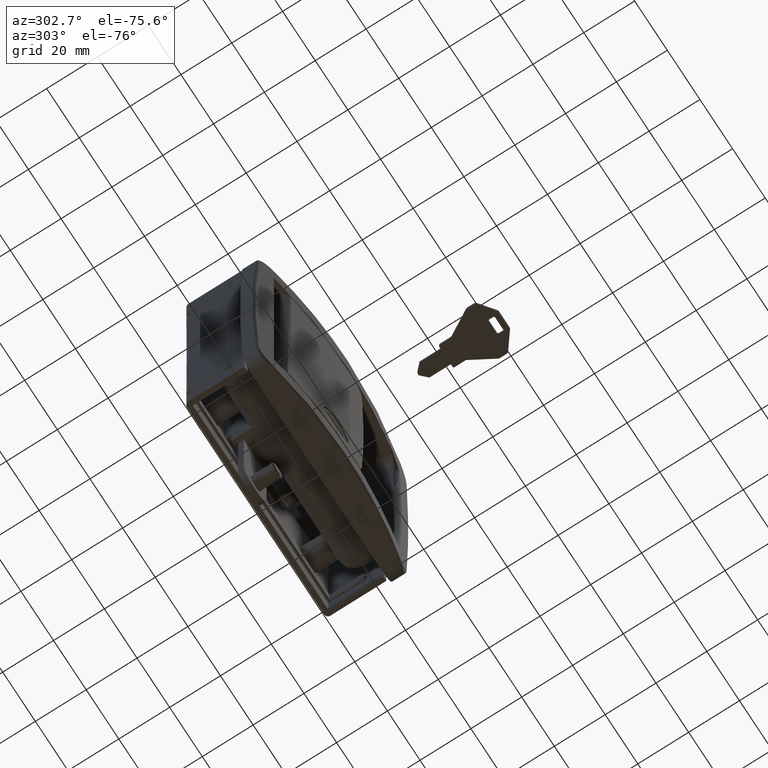
[diagram: clean part render]
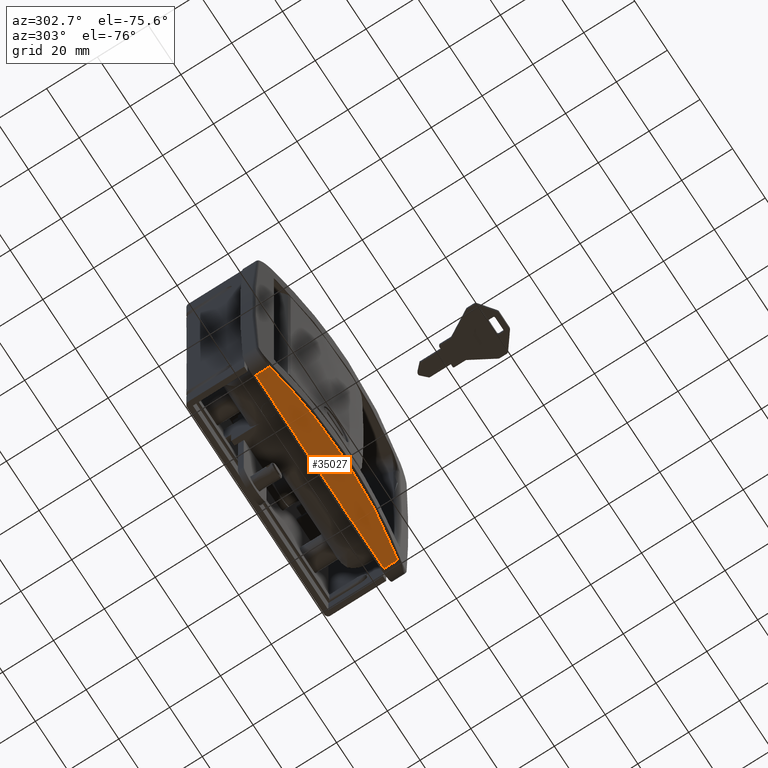
[diagram: same view with one face highlighted and labeled with its STEP entity id]
A machine part, auxiliary view. The second image highlights one B-rep face of the part: STEP entity #35027.
In plain terms, the highlighted face is a freeform B-spline surface patch.
Its self-contained STEP definition (entity closure, byte-faithful):
#32141=CARTESIAN_POINT('',(8.270173018109309,-5.417433262248970,-63.973311056229797));
#32142=VERTEX_POINT('',#32141);
#32531=CARTESIAN_POINT('',(86.729826981894206,-5.417433262242640,-63.973311056265111));
#32532=VERTEX_POINT('',#32531);
#32556=CARTESIAN_POINT('',(86.729826981894206,-5.417433262242640,-63.973311056265111));
#32557=CARTESIAN_POINT('',(79.687884863613817,-6.900411787224127,-64.346248641450856));
#32558=CARTESIAN_POINT('',(68.888788215359057,-8.540098418687524,-64.758594985309074));
#32559=CARTESIAN_POINT('',(52.447151228054082,-9.606979570430688,-65.026892923345045));
#32560=CARTESIAN_POINT('',(33.280815025958830,-9.452112882004856,-64.987947242171003));
#32561=CARTESIAN_POINT('',(17.927647870838360,-7.451553986184043,-64.484849192483949));
#32562=CARTESIAN_POINT('',(8.270173018109309,-5.417433262248970,-63.973311056229797));
#32563=B_SPLINE_CURVE_WITH_KNOTS('',3,(#32556,#32557,#32558,#32559,#32560,#32561,#32562),.UNSPECIFIED.,.F.,.U.,(4,1,1,1,4),(6.002068E-009,21.618139403879312,32.736057415965263,49.412887967541081,79.060621473322769),.UNSPECIFIED.);
#32564=EDGE_CURVE('',#32532,#32142,#32563,.T.);
#34844=CARTESIAN_POINT('',(86.729826981894206,-3.197442E-011,-63.973311056265111));
#34845=VERTEX_POINT('',#34844);
#34858=CARTESIAN_POINT('',(8.270173018109309,-3.197442E-011,-63.973311056229797));
#34859=VERTEX_POINT('',#34858);
#34860=CARTESIAN_POINT('',(8.270173018109309,-3.197442E-011,-63.973311056229797));
#34861=CARTESIAN_POINT('',(47.500000000000242,-3.197442E-011,-66.028096323373248));
#34862=CARTESIAN_POINT('',(86.729826981894206,-3.197442E-011,-63.973311056265111));
#34870=(BOUNDED_CURVE()B_SPLINE_CURVE(2,(#34860,#34861,#34862),.UNSPECIFIED.,.F.,.U.)CURVE()GEOMETRIC_REPRESENTATION_ITEM()QUASI_UNIFORM_CURVE()RATIONAL_B_SPLINE_CURVE((1.0,0.998631081408697,1.0))REPRESENTATION_ITEM(''));
#34871=EDGE_CURVE('',#34859,#34845,#34870,.T.);
#34994=CARTESIAN_POINT('',(86.729826981894206,-3.197442E-011,-63.973311056265111));
#34995=CARTESIAN_POINT('',(86.729826981894206,-5.417433262242640,-63.973311056265111));
#34996=QUASI_UNIFORM_CURVE('',1,(#34994,#34995),.UNSPECIFIED.,.F.,.U.);
#34997=EDGE_CURVE('',#34845,#32532,#34996,.T.);
#35003=CARTESIAN_POINT('',(90.639882972396677,0.237500000502080,-63.758272406218616));
#35004=CARTESIAN_POINT('',(90.639882972396677,-9.743437521941539,-63.758272406218616));
#35005=CARTESIAN_POINT('',(47.497181481463087,0.237500000502080,-66.243949242129247));
#35006=CARTESIAN_POINT('',(47.497181481463087,-9.743437521941539,-66.243949242129247));
#35007=CARTESIAN_POINT('',(4.354498643280850,0.237500000502080,-63.757948680503823));
#35008=CARTESIAN_POINT('',(4.354498643280850,-9.743437521941537,-63.757948680503823));
#35016=(BOUNDED_SURFACE()B_SPLINE_SURFACE(1,2,((#35003,#35005,#35007),(#35004,#35006,#35008)),.UNSPECIFIED.,.F.,.F.,.U.)B_SPLINE_SURFACE_WITH_KNOTS((2,2),(3,3),(0.0,9.980937522443616),(15.798501841735840,102.170156605529800),.UNSPECIFIED.)GEOMETRIC_REPRESENTATION_ITEM()RATIONAL_B_SPLINE_SURFACE(((0.999009697481741,0.996605067675577,0.997506939755854),(0.999009697481741,0.996605067675577,0.997506939755854)))REPRESENTATION_ITEM('')SURFACE());
#35017=ORIENTED_EDGE('',*,*,#34997,.T.);
#35018=ORIENTED_EDGE('',*,*,#32564,.T.);
#35019=CARTESIAN_POINT('',(8.270173018109309,-3.197442E-011,-63.973311056229797));
#35020=CARTESIAN_POINT('',(8.270173018109309,-5.417433262248970,-63.973311056229797));
#35021=QUASI_UNIFORM_CURVE('',1,(#35019,#35020),.UNSPECIFIED.,.F.,.U.);
#35022=EDGE_CURVE('',#34859,#32142,#35021,.T.);
#35023=ORIENTED_EDGE('',*,*,#35022,.F.);
#35024=ORIENTED_EDGE('',*,*,#34871,.T.);
#35025=EDGE_LOOP('',(#35017,#35018,#35023,#35024));
#35026=FACE_OUTER_BOUND('',#35025,.T.);
#35027=ADVANCED_FACE('',(#35026),#35016,.T.);